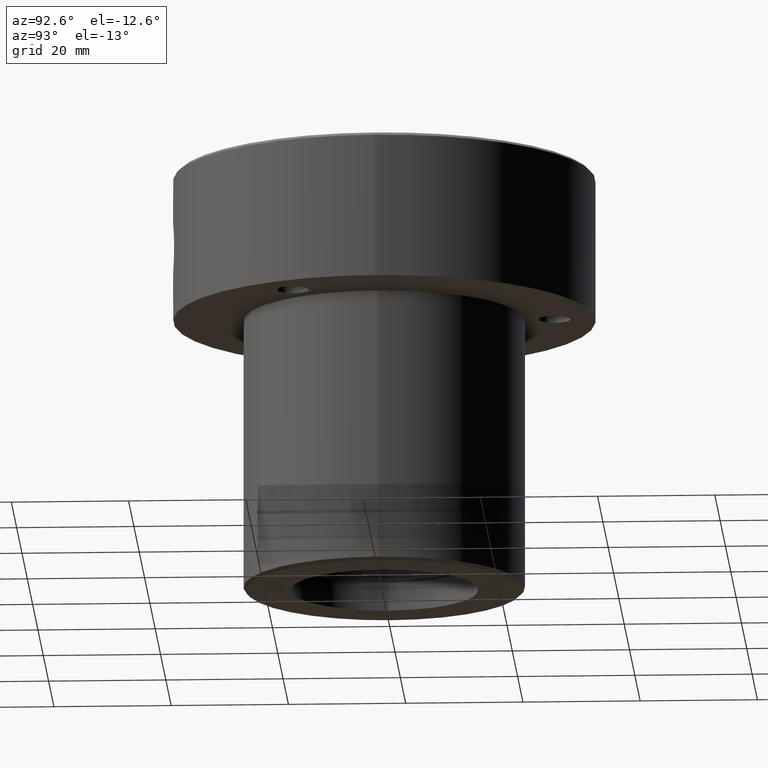
[diagram: clean part render]
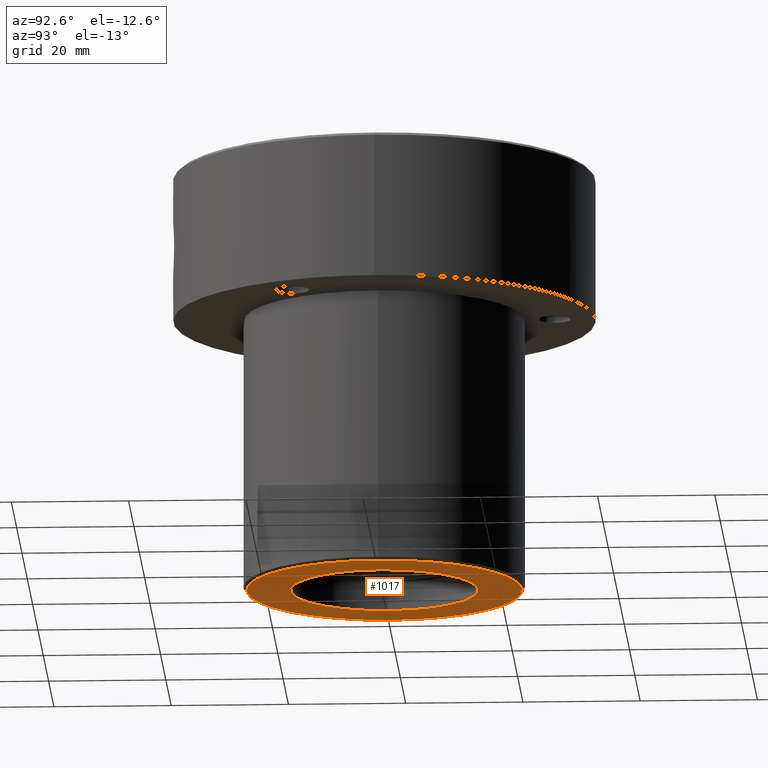
[diagram: same view with one face highlighted and labeled with its STEP entity id]
A machine part, auxiliary view. The second image highlights one B-rep face of the part: STEP entity #1017.
In plain terms, the highlighted planar face has unit normal (0, 0, -1).
Its self-contained STEP definition (entity closure, byte-faithful):
#7 = AXIS2_PLACEMENT_3D ( 'NONE', #161, #368, #73 ) ;
#12 = CARTESIAN_POINT ( 'NONE',  ( 0.000000000000000000, 0.000000000000000000, -72.00000000000000000 ) ) ;
#19 = DIRECTION ( 'NONE',  ( -1.000000000000000000, 0.000000000000000000, 0.000000000000000000 ) ) ;
#73 = DIRECTION ( 'NONE',  ( -1.000000000000000000, 0.000000000000000000, 0.000000000000000000 ) ) ;
#118 = CARTESIAN_POINT ( 'NONE',  ( -23.50000000000000355, 2.908536147974964502E-15, -72.00000000000000000 ) ) ;
#138 = EDGE_LOOP ( 'NONE', ( #879, #731 ) ) ;
#143 = AXIS2_PLACEMENT_3D ( 'NONE', #1040, #561, #1034 ) ;
#161 = CARTESIAN_POINT ( 'NONE',  ( 0.000000000000000000, 0.000000000000000000, -72.00000000000000000 ) ) ;
#209 = PLANE ( 'NONE',  #143 ) ;
#237 = EDGE_CURVE ( 'NONE', #1130, #809, #325, .T. ) ;
#294 = DIRECTION ( 'NONE',  ( -1.000000000000000000, 0.000000000000000000, 0.000000000000000000 ) ) ;
#325 = CIRCLE ( 'NONE', #486, 16.00000000000000000 ) ;
#341 = EDGE_CURVE ( 'NONE', #785, #624, #967, .T. ) ;
#368 = DIRECTION ( 'NONE',  ( 0.000000000000000000, 0.000000000000000000, -1.000000000000000000 ) ) ;
#410 = AXIS2_PLACEMENT_3D ( 'NONE', #915, #1240, #452 ) ;
#434 = AXIS2_PLACEMENT_3D ( 'NONE', #12, #1172, #294 ) ;
#452 = DIRECTION ( 'NONE',  ( -1.000000000000000000, 0.000000000000000000, 0.000000000000000000 ) ) ;
#486 = AXIS2_PLACEMENT_3D ( 'NONE', #637, #880, #19 ) ;
#544 = EDGE_LOOP ( 'NONE', ( #631, #844 ) ) ;
#561 = DIRECTION ( 'NONE',  ( 0.000000000000000000, 0.000000000000000000, -1.000000000000000000 ) ) ;
#624 = VERTEX_POINT ( 'NONE', #118 ) ;
#631 = ORIENTED_EDGE ( 'NONE', *, *, #341, .T. ) ;
#637 = CARTESIAN_POINT ( 'NONE',  ( 0.000000000000000000, 0.000000000000000000, -72.00000000000000000 ) ) ;
#701 = FACE_OUTER_BOUND ( 'NONE', #544, .T. ) ;
#711 = CARTESIAN_POINT ( 'NONE',  ( 16.00000000000000000, 1.959434878635765131E-15, -72.00000000000000000 ) ) ;
#731 = ORIENTED_EDGE ( 'NONE', *, *, #237, .F. ) ;
#785 = VERTEX_POINT ( 'NONE', #956 ) ;
#792 = FACE_BOUND ( 'NONE', #138, .T. ) ;
#809 = VERTEX_POINT ( 'NONE', #1088 ) ;
#844 = ORIENTED_EDGE ( 'NONE', *, *, #893, .T. ) ;
#879 = ORIENTED_EDGE ( 'NONE', *, *, #1035, .F. ) ;
#880 = DIRECTION ( 'NONE',  ( 0.000000000000000000, 0.000000000000000000, -1.000000000000000000 ) ) ;
#893 = EDGE_CURVE ( 'NONE', #624, #785, #968, .T. ) ;
#915 = CARTESIAN_POINT ( 'NONE',  ( 0.000000000000000000, 0.000000000000000000, -72.00000000000000000 ) ) ;
#943 = CIRCLE ( 'NONE', #7, 16.00000000000000000 ) ;
#956 = CARTESIAN_POINT ( 'NONE',  ( 23.50000000000000355, 0.000000000000000000, -72.00000000000000000 ) ) ;
#967 = CIRCLE ( 'NONE', #410, 23.50000000000000355 ) ;
#968 = CIRCLE ( 'NONE', #434, 23.50000000000000355 ) ;
#1017 = ADVANCED_FACE ( 'NONE', ( #792, #701 ), #209, .T. ) ;
#1034 = DIRECTION ( 'NONE',  ( -1.000000000000000000, 0.000000000000000000, -0.000000000000000000 ) ) ;
#1035 = EDGE_CURVE ( 'NONE', #809, #1130, #943, .T. ) ;
#1040 = CARTESIAN_POINT ( 'NONE',  ( 0.000000000000000000, 24.00000000000000000, -72.00000000000000000 ) ) ;
#1088 = CARTESIAN_POINT ( 'NONE',  ( -16.00000000000000000, 0.000000000000000000, -72.00000000000000000 ) ) ;
#1130 = VERTEX_POINT ( 'NONE', #711 ) ;
#1172 = DIRECTION ( 'NONE',  ( 0.000000000000000000, 0.000000000000000000, -1.000000000000000000 ) ) ;
#1240 = DIRECTION ( 'NONE',  ( 0.000000000000000000, 0.000000000000000000, -1.000000000000000000 ) ) ;